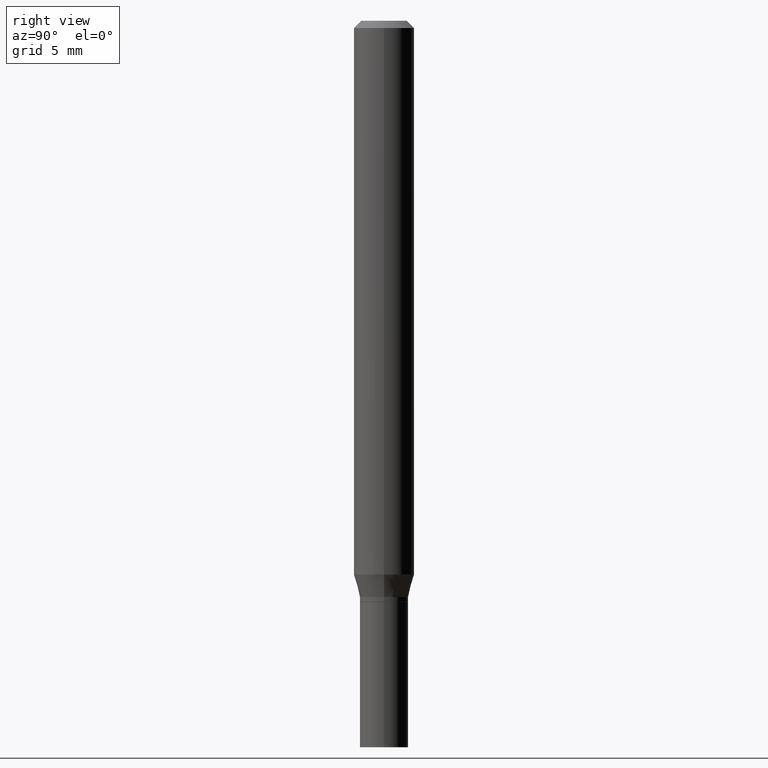
[diagram: clean part render]
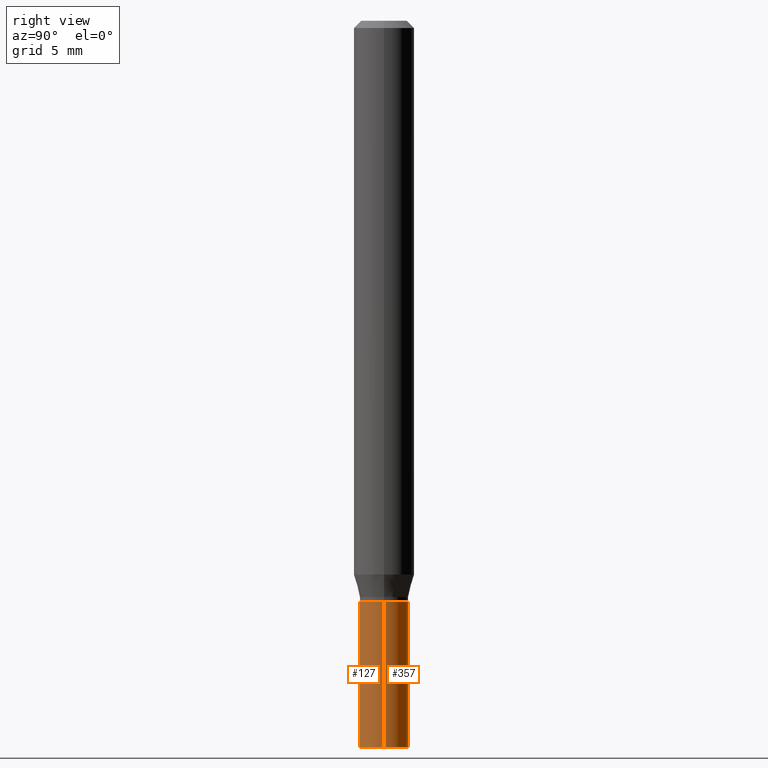
[diagram: same view with one multi-face feature highlighted, each face labeled with its STEP entity id]
A machine part, right view. The highlighted faces form ONE feature: a constant-radius fillet chain: 2 tangent blend faces with common blend radius 1.27 mm. The faces share edges in the B-rep.
Their STEP definitions:
[1] entity #357 (Cylinder):
#11 = EDGE_CURVE ( 'NONE', #435, #424, #64, .T. ) ;
#14 = CARTESIAN_POINT ( 'NONE',  ( -0.05000000000000000278, 3.552713678800501127E-16, -2.459467545127453311E-30 ) ) ;
#47 = DIRECTION ( 'NONE',  ( 1.000000000000000000, -6.982962677686267499E-15, 4.876176775795936353E-29 ) ) ;
#57 = ORIENTED_EDGE ( 'NONE', *, *, #11, .F. ) ;
#64 = LINE ( 'NONE', #134, #275 ) ;
#77 = CARTESIAN_POINT ( 'NONE',  ( -0.05000000000000000278, -4.358228439558196976E-15, -1.200000000000000178 ) ) ;
#79 = AXIS2_PLACEMENT_3D ( 'NONE', #232, #116, #47 ) ;
#80 = DIRECTION ( 'NONE',  ( -2.445468806185136877E-29, 3.491481338843145188E-15, 1.000000000000000000 ) ) ;
#90 = CARTESIAN_POINT ( 'NONE',  ( 0.05000000000000000278, -5.586370142149032301E-15, -1.500000000000000222 ) ) ;
#112 = DIRECTION ( 'NONE',  ( -2.445468806185136597E-29, 3.491481338843145583E-15, 1.000000000000000000 ) ) ;
#116 = DIRECTION ( 'NONE',  ( -2.445468806185136597E-29, 3.491481338843145583E-15, 1.000000000000000000 ) ) ;
#117 = LINE ( 'NONE', #14, #463 ) ;
#118 = EDGE_LOOP ( 'NONE', ( #208, #131, #126, #57 ) ) ;
#126 = ORIENTED_EDGE ( 'NONE', *, *, #220, .F. ) ;
#131 = ORIENTED_EDGE ( 'NONE', *, *, #327, .T. ) ;
#134 = CARTESIAN_POINT ( 'NONE',  ( 0.05000000000000000278, -3.491481338843133848E-16, 2.438088387897968247E-30 ) ) ;
#171 = EDGE_CURVE ( 'NONE', #435, #346, #387, .T. ) ;
#194 = FACE_OUTER_BOUND ( 'NONE', #118, .T. ) ;
#208 = ORIENTED_EDGE ( 'NONE', *, *, #171, .T. ) ;
#215 = AXIS2_PLACEMENT_3D ( 'NONE', #217, #444, #329 ) ;
#217 = CARTESIAN_POINT ( 'NONE',  ( 2.934562567422164701E-29, -4.189777606611775804E-15, -1.200000000000000178 ) ) ;
#220 = EDGE_CURVE ( 'NONE', #424, #344, #430, .T. ) ;
#232 = CARTESIAN_POINT ( 'NONE',  ( 0.000000000000000000, 0.000000000000000000, 0.000000000000000000 ) ) ;
#236 = CARTESIAN_POINT ( 'NONE',  ( -0.05000000000000000278, -4.358228439558196976E-15, -1.500000000000000222 ) ) ;
#257 = DIRECTION ( 'NONE',  ( 1.000000000000000000, -6.982962677686274599E-15, 0.000000000000000000 ) ) ;
#275 = VECTOR ( 'NONE', #386, 39.37007874015748143 ) ;
#327 = EDGE_CURVE ( 'NONE', #346, #344, #117, .T. ) ;
#329 = DIRECTION ( 'NONE',  ( 1.000000000000000000, -6.982962677686274599E-15, 0.000000000000000000 ) ) ;
#344 = VERTEX_POINT ( 'NONE', #77 ) ;
#346 = VERTEX_POINT ( 'NONE', #236 ) ;
#357 = ADVANCED_FACE ( 'NONE', ( #194 ), #415, .T. ) ;
#385 = CARTESIAN_POINT ( 'NONE',  ( 0.05000000000000000278, -4.538925740496089139E-15, -1.200000000000000178 ) ) ;
#386 = DIRECTION ( 'NONE',  ( -2.445468806185136877E-29, 3.491481338843145188E-15, 1.000000000000000000 ) ) ;
#387 = CIRCLE ( 'NONE', #452, 0.05000000000000000278 ) ;
#398 = CARTESIAN_POINT ( 'NONE',  ( 3.668203209277704895E-29, -5.237222008264718177E-15, -1.500000000000000222 ) ) ;
#415 = CYLINDRICAL_SURFACE ( 'NONE', #79, 0.05000000000000000278 ) ;
#424 = VERTEX_POINT ( 'NONE', #385 ) ;
#430 = CIRCLE ( 'NONE', #215, 0.05000000000000000278 ) ;
#435 = VERTEX_POINT ( 'NONE', #90 ) ;
#444 = DIRECTION ( 'NONE',  ( -2.445468806185136597E-29, 3.491481338843145583E-15, 1.000000000000000000 ) ) ;
#452 = AXIS2_PLACEMENT_3D ( 'NONE', #398, #112, #257 ) ;
#463 = VECTOR ( 'NONE', #80, 39.37007874015748143 ) ;
[2] entity #127 (Cylinder):
#11 = EDGE_CURVE ( 'NONE', #435, #424, #64, .T. ) ;
#14 = CARTESIAN_POINT ( 'NONE',  ( -0.05000000000000000278, 3.552713678800501127E-16, -2.459467545127453311E-30 ) ) ;
#41 = DIRECTION ( 'NONE',  ( -2.445468806185136597E-29, 3.491481338843145583E-15, 1.000000000000000000 ) ) ;
#64 = LINE ( 'NONE', #134, #275 ) ;
#77 = CARTESIAN_POINT ( 'NONE',  ( -0.05000000000000000278, -4.358228439558196976E-15, -1.200000000000000178 ) ) ;
#80 = DIRECTION ( 'NONE',  ( -2.445468806185136877E-29, 3.491481338843145188E-15, 1.000000000000000000 ) ) ;
#81 = ORIENTED_EDGE ( 'NONE', *, *, #11, .T. ) ;
#90 = CARTESIAN_POINT ( 'NONE',  ( 0.05000000000000000278, -5.586370142149032301E-15, -1.500000000000000222 ) ) ;
#96 = CIRCLE ( 'NONE', #114, 0.05000000000000000278 ) ;
#114 = AXIS2_PLACEMENT_3D ( 'NONE', #125, #151, #225 ) ;
#117 = LINE ( 'NONE', #14, #463 ) ;
#125 = CARTESIAN_POINT ( 'NONE',  ( 2.934562567422164701E-29, -4.189777606611775804E-15, -1.200000000000000178 ) ) ;
#127 = ADVANCED_FACE ( 'NONE', ( #466 ), #185, .T. ) ;
#134 = CARTESIAN_POINT ( 'NONE',  ( 0.05000000000000000278, -3.491481338843133848E-16, 2.438088387897968247E-30 ) ) ;
#135 = CARTESIAN_POINT ( 'NONE',  ( 3.668203209277704895E-29, -5.237222008264718177E-15, -1.500000000000000222 ) ) ;
#144 = DIRECTION ( 'NONE',  ( 1.000000000000000000, -6.982962677686267499E-15, 4.876176775795936353E-29 ) ) ;
#151 = DIRECTION ( 'NONE',  ( -2.445468806185136597E-29, 3.491481338843145583E-15, 1.000000000000000000 ) ) ;
#185 = CYLINDRICAL_SURFACE ( 'NONE', #418, 0.05000000000000000278 ) ;
#202 = ORIENTED_EDGE ( 'NONE', *, *, #411, .T. ) ;
#203 = DIRECTION ( 'NONE',  ( -2.445468806185136597E-29, 3.491481338843145583E-15, 1.000000000000000000 ) ) ;
#204 = EDGE_LOOP ( 'NONE', ( #238, #202, #81, #304 ) ) ;
#206 = DIRECTION ( 'NONE',  ( 1.000000000000000000, -6.982962677686274599E-15, 0.000000000000000000 ) ) ;
#225 = DIRECTION ( 'NONE',  ( 1.000000000000000000, -6.982962677686274599E-15, 0.000000000000000000 ) ) ;
#236 = CARTESIAN_POINT ( 'NONE',  ( -0.05000000000000000278, -4.358228439558196976E-15, -1.500000000000000222 ) ) ;
#238 = ORIENTED_EDGE ( 'NONE', *, *, #327, .F. ) ;
#275 = VECTOR ( 'NONE', #386, 39.37007874015748143 ) ;
#292 = EDGE_CURVE ( 'NONE', #344, #424, #96, .T. ) ;
#296 = CIRCLE ( 'NONE', #352, 0.05000000000000000278 ) ;
#304 = ORIENTED_EDGE ( 'NONE', *, *, #292, .F. ) ;
#327 = EDGE_CURVE ( 'NONE', #346, #344, #117, .T. ) ;
#344 = VERTEX_POINT ( 'NONE', #77 ) ;
#346 = VERTEX_POINT ( 'NONE', #236 ) ;
#352 = AXIS2_PLACEMENT_3D ( 'NONE', #135, #203, #206 ) ;
#385 = CARTESIAN_POINT ( 'NONE',  ( 0.05000000000000000278, -4.538925740496089139E-15, -1.200000000000000178 ) ) ;
#386 = DIRECTION ( 'NONE',  ( -2.445468806185136877E-29, 3.491481338843145188E-15, 1.000000000000000000 ) ) ;
#411 = EDGE_CURVE ( 'NONE', #346, #435, #296, .T. ) ;
#418 = AXIS2_PLACEMENT_3D ( 'NONE', #447, #41, #144 ) ;
#424 = VERTEX_POINT ( 'NONE', #385 ) ;
#435 = VERTEX_POINT ( 'NONE', #90 ) ;
#447 = CARTESIAN_POINT ( 'NONE',  ( 0.000000000000000000, 0.000000000000000000, 0.000000000000000000 ) ) ;
#463 = VECTOR ( 'NONE', #80, 39.37007874015748143 ) ;
#466 = FACE_OUTER_BOUND ( 'NONE', #204, .T. ) ;